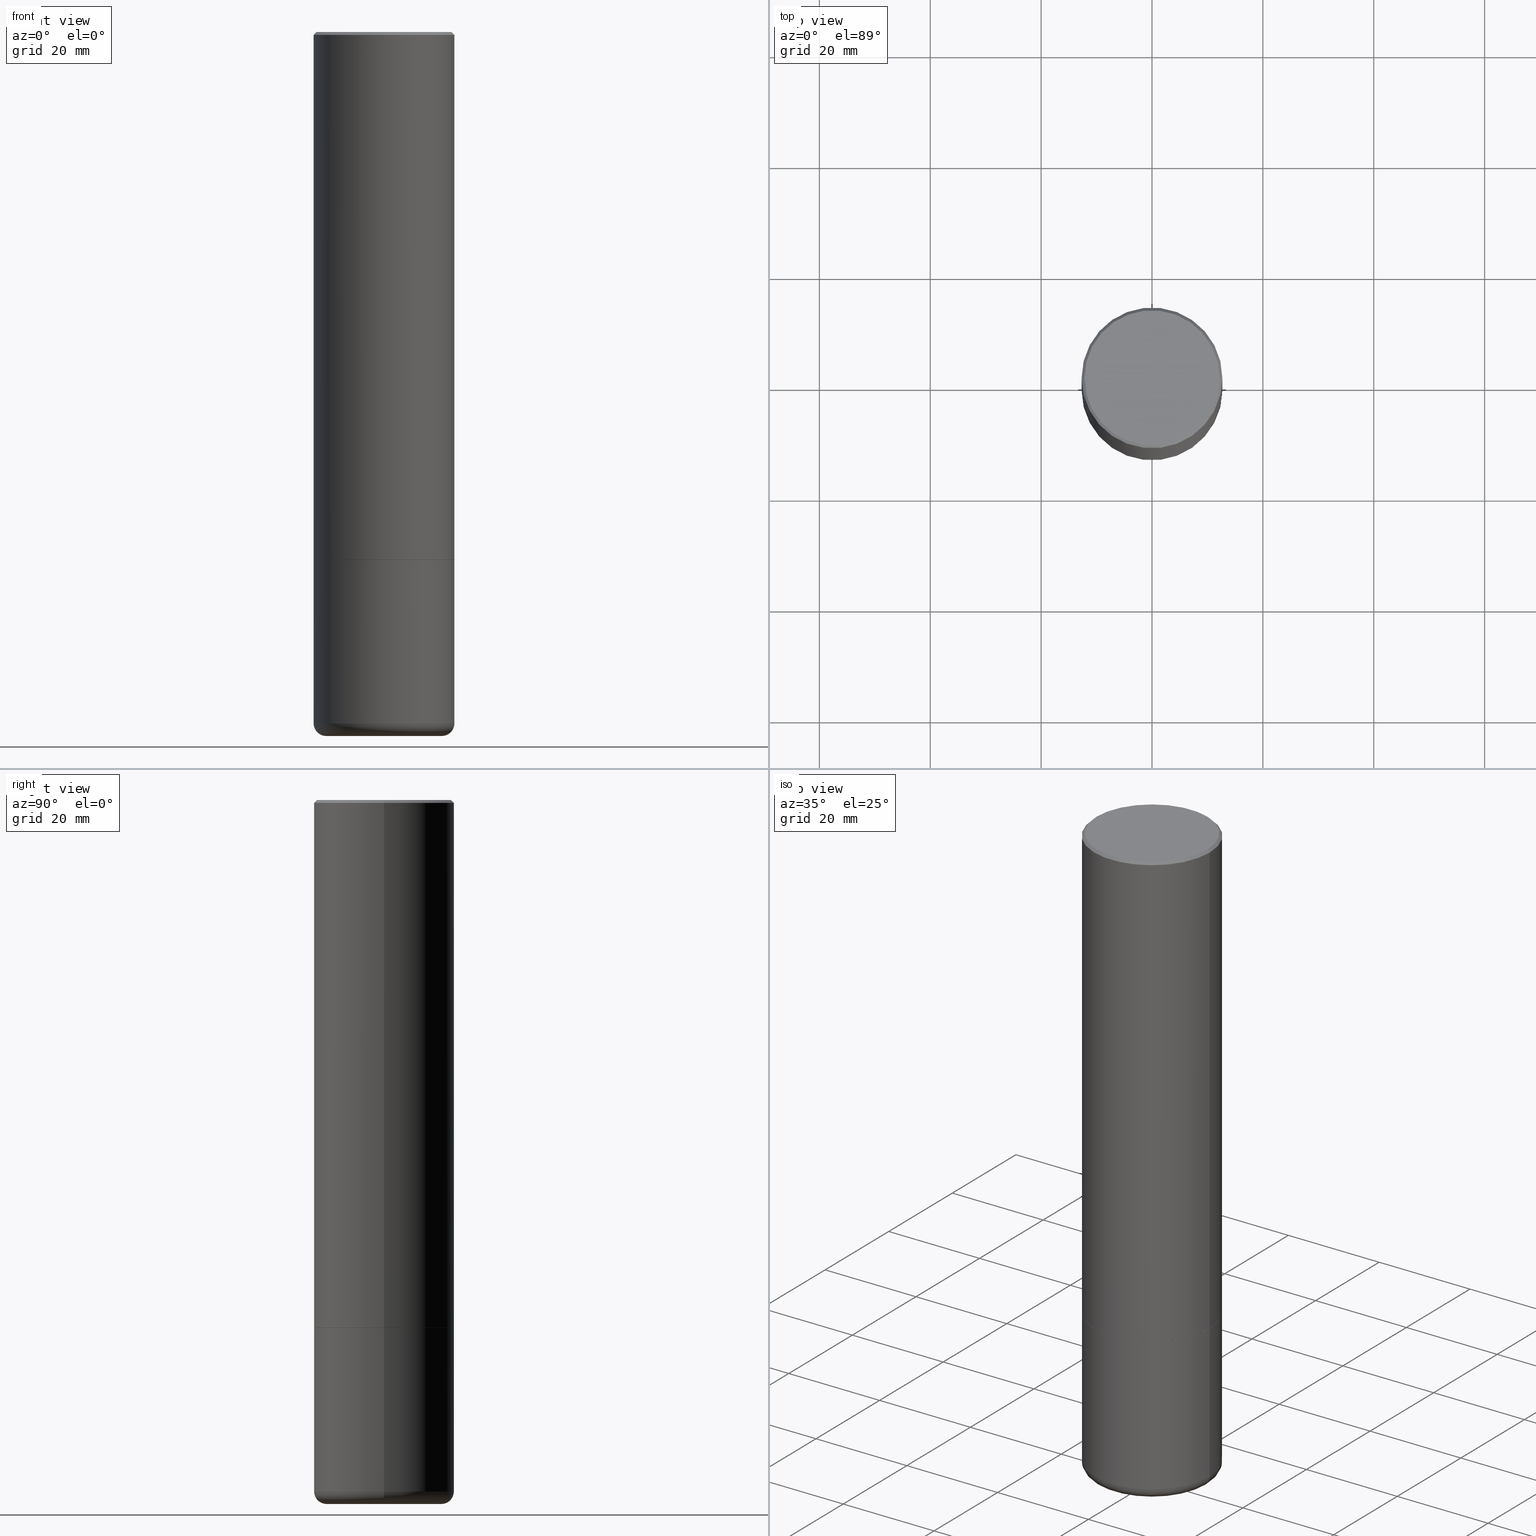
[diagram: canonical four-view strip — front | top / right | iso, engineering-drawing reading convention]
A machine part, canonical four-view strip (front | top / right | iso — engineering-drawing reading convention). The complete STEP part file that produces these views, byte-faithful:
ISO-10303-21;
HEADER;
FILE_DESCRIPTION (( 'STEP AP203' ),
    '1' );
FILE_NAME ('35733.STEP',
    '2022-11-02T20:55:50',
    ( '' ),
    ( '' ),
    'SwSTEP 2.0',
    'SolidWorks 2022',
    '' );
FILE_SCHEMA (( 'CONFIG_CONTROL_DESIGN' ));
ENDSEC;

DATA;
#1 = DIRECTION ( 'NONE',  ( 1.000000000000000000, -6.982962677686266711E-15, 0.000000000000000000 ) ) ;
#2 = FACE_OUTER_BOUND ( 'NONE', #224, .T. ) ;
#3 = EDGE_CURVE ( 'NONE', #290, #162, #248, .T. ) ;
#4 = CARTESIAN_POINT ( 'NONE',  ( 9.168062554388078877E-29, -1.308956353932295441E-14, -3.749000000000000554 ) ) ;
#5 = PERSON ( 'UNSPECIFIED', 'UNSPECIFIED', 'UNSPECIFIED', ('UNSPECIFIED'), ('UNSPECIFIED'), ('UNSPECIFIED') ) ;
#6 = CONICAL_SURFACE ( 'NONE', #122, 0.4092146118051470660, 1.562069680534929894 ) ;
#7 = DIRECTION ( 'NONE',  ( 7.105427357601001859E-15, 1.000000000000000000, -3.491481338843145583E-15 ) ) ;
#8 = ADVANCED_FACE ( 'NONE', ( #26 ), #299, .T. ) ;
#9 = ORIENTED_EDGE ( 'NONE', *, *, #135, .F. ) ;
#10 = DIRECTION ( 'NONE',  ( -1.000000000000000000, 6.982962677686266711E-15, 0.000000000000000000 ) ) ;
#11 = CARTESIAN_POINT ( 'NONE',  ( -0.4999999999999997224, 3.552713678800498957E-15, -2.459467545127451490E-29 ) ) ;
#12 = DIRECTION ( 'NONE',  ( 1.000000000000000000, -6.982962677686271444E-15, 0.000000000000000000 ) ) ;
#13 = ORIENTED_EDGE ( 'NONE', *, *, #114, .F. ) ;
#14 = CARTESIAN_POINT ( 'NONE',  ( -0.4999999999999994449, -3.026982904249409106E-15, -3.749000000000000554 ) ) ;
#15 = SHAPE_DEFINITION_REPRESENTATION ( #40, #405 ) ;
#16 = DIRECTION ( 'NONE',  ( -1.000000000000000000, 7.105427357601001859E-15, 0.000000000000000000 ) ) ;
#17 = DIRECTION ( 'NONE',  ( 0.7071067811864267805, -2.468850131080992517E-15, 0.7071067811866682540 ) ) ;
#18 = EDGE_CURVE ( 'NONE', #71, #199, #359, .T. ) ;
#19 = LINE ( 'NONE', #314, #403 ) ;
#20 = CARTESIAN_POINT ( 'NONE',  ( 9.170508023194263359E-29, -1.309305502066179899E-14, -3.750000000000000888 ) ) ;
#21 =( CONVERSION_BASED_UNIT ( 'INCH', #471 ) LENGTH_UNIT ( ) NAMED_UNIT ( #415 ) );
#22 = DIRECTION ( 'NONE',  ( -2.445468806185136597E-29, 3.491481338843145583E-15, 1.000000000000000000 ) ) ;
#23 = ORIENTED_EDGE ( 'NONE', *, *, #481, .F. ) ;
#24 = ORIENTED_EDGE ( 'NONE', *, *, #140, .T. ) ;
#25 = ADVANCED_FACE ( 'NONE', ( #215 ), #227, .T. ) ;
#26 = FACE_OUTER_BOUND ( 'NONE', #467, .T. ) ;
#27 = AXIS2_PLACEMENT_3D ( 'NONE', #322, #470, #136 ) ;
#28 = ADVANCED_FACE ( 'NONE', ( #319 ), #431, .T. ) ;
#29 = AXIS2_PLACEMENT_3D ( 'NONE', #429, #246, #393 ) ;
#30 = CARTESIAN_POINT ( 'NONE',  ( 0.4999999999999990563, -3.500078625662622769E-15, -0.02000000000000020164 ) ) ;
#31 = EDGE_CURVE ( 'NONE', #308, #450, #186, .T. ) ;
#32 = LOCAL_TIME ( 16, 55, 50.00000000000000000, #270 ) ;
#33 = COORDINATED_UNIVERSAL_TIME_OFFSET ( 5, 0, .BEHIND. ) ;
#34 = EDGE_CURVE ( 'NONE', #231, #353, #287, .T. ) ;
#35 = EDGE_LOOP ( 'NONE', ( #473, #38, #349 ) ) ;
#36 = VECTOR ( 'NONE', #171, 39.37007874015748143 ) ;
#37 = DIRECTION ( 'NONE',  ( -2.445468806185136597E-29, 3.491481338843145583E-15, 1.000000000000000000 ) ) ;
#38 = ORIENTED_EDGE ( 'NONE', *, *, #330, .T. ) ;
#39 = PERSON_AND_ORGANIZATION ( #5, #350 ) ;
#40 = PRODUCT_DEFINITION_SHAPE ( 'NONE', 'NONE',  #151 ) ;
#41 = EDGE_LOOP ( 'NONE', ( #384, #121, #345, #356 ) ) ;
#42 = EDGE_CURVE ( 'NONE', #218, #205, #146, .T. ) ;
#43 = EDGE_LOOP ( 'NONE', ( #341, #463, #210, #94 ) ) ;
#44 = DIRECTION ( 'NONE',  ( -0.9993908270190957621, 6.856857904024551737E-15, -0.03489949670250264147 ) ) ;
#45 = PRODUCT ( '35733', '35733', '', ( #361 ) ) ;
#46 = CC_DESIGN_PERSON_AND_ORGANIZATION_ASSIGNMENT ( #115, #137, ( #151 ) ) ;
#47 = PERSON_AND_ORGANIZATION_ROLE ( 'classification_officer' ) ;
#48 = DIRECTION ( 'NONE',  ( -1.000000000000000000, 6.982962677686265922E-15, -4.876176775795935793E-29 ) ) ;
#49 = DIRECTION ( 'NONE',  ( -2.445468806185136597E-29, 3.491481338843145583E-15, 1.000000000000000000 ) ) ;
#50 = CLOSED_SHELL ( 'NONE', ( #336, #266, #301, #425, #110, #274, #28, #479, #212 ) ) ;
#51 = CIRCLE ( 'NONE', #329, 0.08999999999999985789 ) ;
#52 = CARTESIAN_POINT ( 'NONE',  ( 9.170508023194262238E-29, -1.309305502066179741E-14, -3.750000000000000000 ) ) ;
#53 = VERTEX_POINT ( 'NONE', #178 ) ;
#54 = DIRECTION ( 'NONE',  ( -2.445468806185136597E-29, 3.491481338843145583E-15, 1.000000000000000000 ) ) ;
#55 = DIRECTION ( 'NONE',  ( 1.000000000000000000, -6.982962677686268288E-15, 0.000000000000000000 ) ) ;
#56 = ORIENTED_EDGE ( 'NONE', *, *, #78, .T. ) ;
#57 = DIRECTION ( 'NONE',  ( -2.445468806185136597E-29, 3.491481338843145583E-15, 1.000000000000000000 ) ) ;
#58 = CARTESIAN_POINT ( 'NONE',  ( -0.5000000000000001110, -1.156540650091130805E-14, -4.910003426924224534 ) ) ;
#59 = DIRECTION ( 'NONE',  ( -2.445468806185136597E-29, 3.491481338843145583E-15, 1.000000000000000000 ) ) ;
#60 = ORIENTED_EDGE ( 'NONE', *, *, #204, .T. ) ;
#61 = DIRECTION ( 'NONE',  ( 1.000000000000000000, -6.982962677686266711E-15, 4.876176775795935793E-29 ) ) ;
#62 = ADVANCED_FACE ( 'NONE', ( #404 ), #152, .T. ) ;
#63 = AXIS2_PLACEMENT_3D ( 'NONE', #157, #411, #382 ) ;
#64 = DIRECTION ( 'NONE',  ( 1.000000000000000000, -6.982962677686267499E-15, 4.876431871984425487E-29 ) ) ;
#65 = APPROVAL_PERSON_ORGANIZATION ( #100, #69, #67 ) ;
#66 = ORIENTED_EDGE ( 'NONE', *, *, #106, .T. ) ;
#67 = APPROVAL_ROLE ( '' ) ;
#68 = DIRECTION ( 'NONE',  ( 1.000000000000000000, -6.982962677686268288E-15, 0.000000000000000000 ) ) ;
#69 = APPROVAL ( #327, 'UNSPECIFIED' ) ;
#70 = ORIENTED_EDGE ( 'NONE', *, *, #34, .T. ) ;
#71 = VERTEX_POINT ( 'NONE', #124 ) ;
#72 = VECTOR ( 'NONE', #487, 39.37007874015747433 ) ;
#73 = CARTESIAN_POINT ( 'NONE',  ( 1.200726021880531330E-28, -1.714318533876182370E-14, -4.910003426924224534 ) ) ;
#74 = CC_DESIGN_PERSON_AND_ORGANIZATION_ASSIGNMENT ( #39, #47, ( #170 ) ) ;
#75 = DIRECTION ( 'NONE',  ( -2.445468806185136597E-29, 3.491481338843145583E-15, 1.000000000000000000 ) ) ;
#76 =( LENGTH_UNIT ( ) NAMED_UNIT ( * ) SI_UNIT ( $, .METRE. ) );
#77 = AXIS2_PLACEMENT_3D ( 'NONE', #73, #75, #225 ) ;
#78 = EDGE_CURVE ( 'NONE', #199, #450, #476, .T. ) ;
#79 = EDGE_CURVE ( 'NONE', #380, #199, #180, .T. ) ;
#80 = DIRECTION ( 'NONE',  ( -1.000000000000000000, 6.982962677686265922E-15, -4.876176775795935793E-29 ) ) ;
#81 = EDGE_LOOP ( 'NONE', ( #438, #56, #191, #272 ) ) ;
#82 = EDGE_CURVE ( 'NONE', #134, #218, #295, .T. ) ;
#83 = CIRCLE ( 'NONE', #360, 0.4999999999999990563 ) ;
#84 = DIRECTION ( 'NONE',  ( -1.000000000000000000, 6.982962677686266711E-15, 0.000000000000000000 ) ) ;
#85 = ORIENTED_EDGE ( 'NONE', *, *, #482, .F. ) ;
#86 = LINE ( 'NONE', #11, #413 ) ;
#87 = CARTESIAN_POINT ( 'NONE',  ( 1.222620590030553347E-28, -1.745578174532602389E-14, -4.999534596140719600 ) ) ;
#88 = ORIENTED_EDGE ( 'NONE', *, *, #42, .F. ) ;
#89 = DIRECTION ( 'NONE',  ( 1.000000000000000000, -6.982962677686266711E-15, 0.000000000000000000 ) ) ;
#90 = CARTESIAN_POINT ( 'NONE',  ( -0.4092146118051470660, -1.407011682816334222E-14, -5.000000000000000000 ) ) ;
#91 = ORIENTED_EDGE ( 'NONE', *, *, #481, .T. ) ;
#92 = DIRECTION ( 'NONE',  ( 1.000000000000000000, -6.982962677686268288E-15, 0.000000000000000000 ) ) ;
#93 = LINE ( 'NONE', #346, #271 ) ;
#94 = ORIENTED_EDGE ( 'NONE', *, *, #165, .F. ) ;
#95 = CARTESIAN_POINT ( 'NONE',  ( 1.222734403092568523E-28, -1.745740669421572989E-14, -5.000000000000000000 ) ) ;
#96 = ORIENTED_EDGE ( 'NONE', *, *, #114, .T. ) ;
#97 = DATE_AND_TIME ( #232, #32 ) ;
#98 = CYLINDRICAL_SURFACE ( 'NONE', #441, 0.4999999999999992228 ) ;
#99 = ORIENTED_EDGE ( 'NONE', *, *, #357, .T. ) ;
#100 = PERSON_AND_ORGANIZATION ( #5, #350 ) ;
#101 = DATE_TIME_ROLE ( 'classification_date' ) ;
#102 = LOCAL_TIME ( 16, 55, 50.00000000000000000, #142 ) ;
#103 = ORIENTED_EDGE ( 'NONE', *, *, #373, .T. ) ;
#104 = DIRECTION ( 'NONE',  ( 2.445468806185136597E-29, -3.491481338843145583E-15, -1.000000000000000000 ) ) ;
#105 = DATE_AND_TIME ( #325, #254 ) ;
#106 = EDGE_CURVE ( 'NONE', #71, #353, #378, .T. ) ;
#107 = EDGE_LOOP ( 'NONE', ( #24, #417 ) ) ;
#108 = DIRECTION ( 'NONE',  ( 1.000000000000000000, 0.000000000000000000, 0.000000000000000000 ) ) ;
#109 = VECTOR ( 'NONE', #203, 39.37007874015748143 ) ;
#110 = ADVANCED_FACE ( 'NONE', ( #198 ), #220, .F. ) ;
#111 = AXIS2_PLACEMENT_3D ( 'NONE', #324, #326, #398 ) ;
#112 = AXIS2_PLACEMENT_3D ( 'NONE', #141, #150, #108 ) ;
#113 =( NAMED_UNIT ( * ) PLANE_ANGLE_UNIT ( ) SI_UNIT ( $, .RADIAN. ) );
#114 = EDGE_CURVE ( 'NONE', #218, #134, #222, .T. ) ;
#115 = PERSON_AND_ORGANIZATION ( #5, #350 ) ;
#116 = AXIS2_PLACEMENT_3D ( 'NONE', #20, #167, #68 ) ;
#117 = EDGE_CURVE ( 'NONE', #153, #290, #132, .T. ) ;
#118 = ORIENTED_EDGE ( 'NONE', *, *, #117, .F. ) ;
#119 = FACE_OUTER_BOUND ( 'NONE', #439, .T. ) ;
#120 = MANIFOLD_SOLID_BREP ( 'Body-Move/Copy2[1]', #50 ) ;
#121 = ORIENTED_EDGE ( 'NONE', *, *, #169, .T. ) ;
#122 = AXIS2_PLACEMENT_3D ( 'NONE', #95, #104, #10 ) ;
#123 = CC_DESIGN_SECURITY_CLASSIFICATION ( #170, ( #320 ) ) ;
#124 = CARTESIAN_POINT ( 'NONE',  ( -0.3558846118051470220, -1.497065278352781821E-14, -4.999534596140719600 ) ) ;
#125 = ORIENTED_EDGE ( 'NONE', *, *, #135, .T. ) ;
#126 = CARTESIAN_POINT ( 'NONE',  ( 1.222734403092568523E-28, -1.745740669421572989E-14, -5.000000000000000000 ) ) ;
#127 = CARTESIAN_POINT ( 'NONE',  ( 9.170508023194262238E-29, -1.309305502066179741E-14, -3.750000000000000000 ) ) ;
#128 = CARTESIAN_POINT ( 'NONE',  ( 9.170508023194263359E-29, -1.309305502066179899E-14, -3.750000000000000888 ) ) ;
#129 = DIRECTION ( 'NONE',  ( -2.445468806185136877E-29, 3.491481338843145188E-15, 1.000000000000000000 ) ) ;
#130 = DIRECTION ( 'NONE',  ( 1.000000000000000000, -6.982962677686266711E-15, 0.000000000000000000 ) ) ;
#131 = CARTESIAN_POINT ( 'NONE',  ( 1.222734403092568523E-28, -1.745740669421572989E-14, -5.000000000000000000 ) ) ;
#132 = CIRCLE ( 'NONE', #211, 0.4989999999999994440 ) ;
#133 = DIRECTION ( 'NONE',  ( 1.000000000000000000, -6.982962677686265922E-15, 0.000000000000000000 ) ) ;
#134 = VERTEX_POINT ( 'NONE', #387 ) ;
#135 = EDGE_CURVE ( 'NONE', #162, #205, #166, .T. ) ;
#136 = DIRECTION ( 'NONE',  ( 1.000000000000000000, -6.982962677686265133E-15, 0.000000000000000000 ) ) ;
#137 = PERSON_AND_ORGANIZATION_ROLE ( 'creator' ) ;
#138 = DIRECTION ( 'NONE',  ( -2.445468806185136597E-29, 3.491481338843145583E-15, 1.000000000000000000 ) ) ;
#139 = CARTESIAN_POINT ( 'NONE',  ( -0.4092146118051470660, -1.459987633281651187E-14, -5.000000000000000000 ) ) ;
#140 = EDGE_CURVE ( 'NONE', #53, #475, #281, .T. ) ;
#141 = CARTESIAN_POINT ( 'NONE',  ( 0.000000000000000000, 0.000000000000000000, 0.000000000000000000 ) ) ;
#142 = COORDINATED_UNIVERSAL_TIME_OFFSET ( 5, 0, .BEHIND. ) ;
#143 = AXIS2_PLACEMENT_3D ( 'NONE', #214, #22, #133 ) ;
#144 = CONICAL_SURFACE ( 'NONE', #379, 0.4999999999999990563, 0.7853981633974477239 ) ;
#145 = COORDINATED_UNIVERSAL_TIME_OFFSET ( 5, 0, .BEHIND. ) ;
#146 = LINE ( 'NONE', #30, #260 ) ;
#147 = VECTOR ( 'NONE', #375, 39.37007874015748143 ) ;
#148 = ADVANCED_FACE ( 'NONE', ( #358 ), #250, .F. ) ;
#149 = ORIENTED_EDGE ( 'NONE', *, *, #3, .T. ) ;
#150 = DIRECTION ( 'NONE',  ( 0.000000000000000000, 0.000000000000000000, 1.000000000000000000 ) ) ;
#151 = PRODUCT_DEFINITION ( 'UNKNOWN', '', #320, #440 ) ;
#152 = CYLINDRICAL_SURFACE ( 'NONE', #388, 0.4999999999999992228 ) ;
#153 = VERTEX_POINT ( 'NONE', #390 ) ;
#154 = DIRECTION ( 'NONE',  ( 1.000000000000000000, -6.982962677686279332E-15, 0.000000000000000000 ) ) ;
#155 = APPROVAL ( #365, 'UNSPECIFIED' ) ;
#156 = PERSON_AND_ORGANIZATION_ROLE ( 'creator' ) ;
#157 = CARTESIAN_POINT ( 'NONE',  ( 1.200726021880531330E-28, -1.714318533876182370E-14, -4.910003426924224534 ) ) ;
#158 = ORIENTED_EDGE ( 'NONE', *, *, #78, .F. ) ;
#159 = CIRCLE ( 'NONE', #263, 0.4999999999999994449 ) ;
#160 = PLANE ( 'NONE',  #182 ) ;
#161 = DIRECTION ( 'NONE',  ( 1.000000000000000000, -6.982962677686267499E-15, 4.876176775795935793E-29 ) ) ;
#162 = VERTEX_POINT ( 'NONE', #355 ) ;
#163 = CARTESIAN_POINT ( 'NONE',  ( 0.4799999999999988165, -3.396558832296475394E-15, 1.707404996042524007E-17 ) ) ;
#164 = DIRECTION ( 'NONE',  ( -2.445468806185136597E-29, 3.491481338843145583E-15, 1.000000000000000000 ) ) ;
#165 = EDGE_CURVE ( 'NONE', #475, #53, #159, .T. ) ;
#166 = LINE ( 'NONE', #311, #36 ) ;
#167 = DIRECTION ( 'NONE',  ( -2.445468806185136597E-29, 3.491481338843145583E-15, 1.000000000000000000 ) ) ;
#168 = AXIS2_PLACEMENT_3D ( 'NONE', #175, #368, #181 ) ;
#169 = EDGE_CURVE ( 'NONE', #153, #374, #19, .T. ) ;
#170 = SECURITY_CLASSIFICATION ( '', '', #344 ) ;
#171 = DIRECTION ( 'NONE',  ( -2.445468806185136877E-29, 3.491481338843145188E-15, 1.000000000000000000 ) ) ;
#172 = DIRECTION ( 'NONE',  ( -2.445468806185136597E-29, 3.491481338843145583E-15, 1.000000000000000000 ) ) ;
#173 = CARTESIAN_POINT ( 'NONE',  ( 9.170508023194263359E-29, -1.309305502066179899E-14, -3.750000000000000888 ) ) ;
#174 = ORIENTED_EDGE ( 'NONE', *, *, #18, .T. ) ;
#175 = CARTESIAN_POINT ( 'NONE',  ( 1.200726021880531330E-28, -1.714318533876182370E-14, -4.910003426924224534 ) ) ;
#176 = APPROVAL_ROLE ( '' ) ;
#177 = ORIENTED_EDGE ( 'NONE', *, *, #117, .T. ) ;
#178 = CARTESIAN_POINT ( 'NONE',  ( 0.4999999999999994449, -1.658453635950492761E-14, -3.750000000000000000 ) ) ;
#179 = DATE_AND_TIME ( #334, #201 ) ;
#180 = CIRCLE ( 'NONE', #406, 0.4092146118051470660 ) ;
#181 = DIRECTION ( 'NONE',  ( 1.000000000000000000, -6.982962677686265133E-15, 0.000000000000000000 ) ) ;
#182 = AXIS2_PLACEMENT_3D ( 'NONE', #420, #354, #80 ) ;
#183 = CC_DESIGN_APPROVAL ( #69, ( #151 ) ) ;
#184 = ORIENTED_EDGE ( 'NONE', *, *, #259, .F. ) ;
#185 = PERSON_AND_ORGANIZATION ( #5, #350 ) ;
#186 = CIRCLE ( 'NONE', #27, 0.5000000000000001110 ) ;
#187 = CIRCLE ( 'NONE', #241, 0.4999999999999990563 ) ;
#188 = ADVANCED_FACE ( 'NONE', ( #247 ), #98, .T. ) ;
#189 = ADVANCED_FACE ( 'NONE', ( #321 ), #457, .F. ) ;
#190 = CARTESIAN_POINT ( 'NONE',  ( 0.4100000000000002531, -2.000620003661319368E-14, -4.910003426924224534 ) ) ;
#191 = ORIENTED_EDGE ( 'NONE', *, *, #31, .F. ) ;
#192 = EDGE_LOOP ( 'NONE', ( #315, #267, #125, #251 ) ) ;
#193 = CARTESIAN_POINT ( 'NONE',  ( -0.4999999999999990563, 3.421651712066262957E-15, -0.02000000000000020164 ) ) ;
#194 = DIRECTION ( 'NONE',  ( 1.000000000000000000, -6.982962677686266711E-15, 0.000000000000000000 ) ) ;
#195 = ORIENTED_EDGE ( 'NONE', *, *, #140, .F. ) ;
#196 = FACE_OUTER_BOUND ( 'NONE', #458, .T. ) ;
#197 = EDGE_CURVE ( 'NONE', #374, #304, #465, .T. ) ;
#198 = FACE_OUTER_BOUND ( 'NONE', #35, .T. ) ;
#199 = VERTEX_POINT ( 'NONE', #90 ) ;
#200 = AXIS2_PLACEMENT_3D ( 'NONE', #286, #207, #323 ) ;
#201 = LOCAL_TIME ( 16, 55, 50.00000000000000000, #33 ) ;
#202 = CARTESIAN_POINT ( 'NONE',  ( 0.4092146118051470660, -2.031493705561494790E-14, -5.000000000000000000 ) ) ;
#203 = DIRECTION ( 'NONE',  ( -2.445468806185136877E-29, 3.491481338843145188E-15, 1.000000000000000000 ) ) ;
#204 = EDGE_CURVE ( 'NONE', #304, #205, #83, .T. ) ;
#205 = VERTEX_POINT ( 'NONE', #280 ) ;
#206 = DIRECTION ( 'NONE',  ( 0.9999619230641714207, -6.890705306874825328E-15, -0.008726535498369011531 ) ) ;
#207 = DIRECTION ( 'NONE',  ( -2.445468806185136597E-29, 3.491481338843145583E-15, 1.000000000000000000 ) ) ;
#208 = ORIENTED_EDGE ( 'NONE', *, *, #18, .F. ) ;
#209 = DIRECTION ( 'NONE',  ( -1.000000000000000000, 6.982962677686265922E-15, 0.000000000000000000 ) ) ;
#210 = ORIENTED_EDGE ( 'NONE', *, *, #407, .T. ) ;
#211 = AXIS2_PLACEMENT_3D ( 'NONE', #173, #138, #55 ) ;
#212 = ADVANCED_FACE ( 'NONE', ( #426 ), #6, .F. ) ;
#213 = CONICAL_SURFACE ( 'NONE', #29, 0.3558846118051470220, 1.535889741755008364 ) ;
#214 = CARTESIAN_POINT ( 'NONE',  ( 1.222620590030553347E-28, -1.745578174532602389E-14, -4.999534596140719600 ) ) ;
#215 = FACE_OUTER_BOUND ( 'NONE', #41, .T. ) ;
#216 = CALENDAR_DATE ( 2022, 2, 11 ) ;
#217 = LINE ( 'NONE', #443, #147 ) ;
#218 = VERTEX_POINT ( 'NONE', #163 ) ;
#219 = APPLICATION_PROTOCOL_DEFINITION ( 'international standard', 'config_control_design', 1994, #338 ) ;
#220 = CONICAL_SURFACE ( 'NONE', #488, 0.3558846118051470220, 1.535889741755008364 ) ;
#221 = CC_DESIGN_PERSON_AND_ORGANIZATION_ASSIGNMENT ( #185, #340, ( #320 ) ) ;
#222 = CIRCLE ( 'NONE', #331, 0.4799999999999988165 ) ;
#223 = APPROVAL_PERSON_ORGANIZATION ( #293, #249, #252 ) ;
#224 = EDGE_LOOP ( 'NONE', ( #158, #233, #402, #85 ) ) ;
#225 = DIRECTION ( 'NONE',  ( 1.000000000000000000, -6.982962677686265133E-15, 4.883557194083112340E-29 ) ) ;
#226 = FACE_OUTER_BOUND ( 'NONE', #363, .T. ) ;
#227 = CONICAL_SURFACE ( 'NONE', #116, 0.4989999999999994440, 0.7853981633972775267 ) ;
#228 = ORIENTED_EDGE ( 'NONE', *, *, #238, .F. ) ;
#229 = DIRECTION ( 'NONE',  ( 1.000000000000000000, -6.982962677686266711E-15, 4.876176775795935793E-29 ) ) ;
#230 = DIRECTION ( 'NONE',  ( -2.445468806185136597E-29, 3.491481338843145583E-15, 1.000000000000000000 ) ) ;
#231 = VERTEX_POINT ( 'NONE', #459 ) ;
#232 = CALENDAR_DATE ( 2022, 2, 11 ) ;
#233 = ORIENTED_EDGE ( 'NONE', *, *, #297, .T. ) ;
#234 = DIRECTION ( 'NONE',  ( 1.000000000000000000, -6.982962677686268288E-15, 0.000000000000000000 ) ) ;
#235 = DIRECTION ( 'NONE',  ( 2.445468806185136597E-29, -3.491481338843145583E-15, -1.000000000000000000 ) ) ;
#236 = ORIENTED_EDGE ( 'NONE', *, *, #169, .F. ) ;
#237 = DIRECTION ( 'NONE',  ( -2.445468806185136877E-29, 3.491481338843145188E-15, 1.000000000000000000 ) ) ;
#238 = EDGE_CURVE ( 'NONE', #290, #153, #412, .T. ) ;
#239 = CARTESIAN_POINT ( 'NONE',  ( -4.175405657340879278E-46, 5.961372681521788801E-32, 1.707404996040164512E-17 ) ) ;
#240 = ORIENTED_EDGE ( 'NONE', *, *, #82, .T. ) ;
#241 = AXIS2_PLACEMENT_3D ( 'NONE', #276, #49, #89 ) ;
#242 = CARTESIAN_POINT ( 'NONE',  ( 0.5000000000000001110, -2.063466667760495706E-14, -4.910003426924224534 ) ) ;
#243 = APPROVAL_DATE_TIME ( #279, #155 ) ;
#244 = DIRECTION ( 'NONE',  ( 2.438088387897960049E-29, -3.491481338843145188E-15, -1.000000000000000000 ) ) ;
#245 = ORIENTED_EDGE ( 'NONE', *, *, #79, .F. ) ;
#246 = DIRECTION ( 'NONE',  ( 2.445468806185136597E-29, -3.491481338843145583E-15, -1.000000000000000000 ) ) ;
#247 = FACE_OUTER_BOUND ( 'NONE', #192, .T. ) ;
#248 = LINE ( 'NONE', #367, #348 ) ;
#249 = APPROVAL ( #434, 'UNSPECIFIED' ) ;
#250 = PLANE ( 'NONE',  #339 ) ;
#251 = ORIENTED_EDGE ( 'NONE', *, *, #204, .F. ) ;
#252 = APPROVAL_ROLE ( '' ) ;
#253 = AXIS2_PLACEMENT_3D ( 'NONE', #126, #449, #389 ) ;
#254 = LOCAL_TIME ( 16, 55, 50.00000000000000000, #145 ) ;
#255 = ORIENTED_EDGE ( 'NONE', *, *, #407, .F. ) ;
#256 = APPROVAL_DATE_TIME ( #364, #249 ) ;
#257 = EDGE_LOOP ( 'NONE', ( #184, #448, #174, #245 ) ) ;
#258 = PERSON_AND_ORGANIZATION ( #5, #350 ) ;
#259 = EDGE_CURVE ( 'NONE', #353, #380, #93, .T. ) ;
#260 = VECTOR ( 'NONE', #442, 39.37007874015748143 ) ;
#261 = CONICAL_SURFACE ( 'NONE', #428, 0.4989999999999994440, 0.7853981633972775267 ) ;
#262 =( NAMED_UNIT ( * ) SI_UNIT ( $, .STERADIAN. ) SOLID_ANGLE_UNIT ( ) );
#263 = AXIS2_PLACEMENT_3D ( 'NONE', #52, #394, #284 ) ;
#264 = AXIS2_PLACEMENT_3D ( 'NONE', #381, #164, #313 ) ;
#265 = UNCERTAINTY_MEASURE_WITH_UNIT (LENGTH_MEASURE( 1.000000000000000082E-05 ), #21, 'distance_accuracy_value', 'NONE');
#266 = ADVANCED_FACE ( 'NONE', ( #316 ), #484, .T. ) ;
#267 = ORIENTED_EDGE ( 'NONE', *, *, #455, .T. ) ;
#268 = DIRECTION ( 'NONE',  ( -2.445468806185136597E-29, 3.491481338843145583E-15, 1.000000000000000000 ) ) ;
#269 = EDGE_LOOP ( 'NONE', ( #88, #392, #91, #60 ) ) ;
#270 = COORDINATED_UNIVERSAL_TIME_OFFSET ( 5, 0, .BEHIND. ) ;
#271 = VECTOR ( 'NONE', #206, 39.37007874015748854 ) ;
#272 = ORIENTED_EDGE ( 'NONE', *, *, #421, .F. ) ;
#273 = CIRCLE ( 'NONE', #168, 0.5000000000000001110 ) ;
#274 = ADVANCED_FACE ( 'NONE', ( #464 ), #160, .F. ) ;
#275 = FACE_OUTER_BOUND ( 'NONE', #269, .T. ) ;
#276 = CARTESIAN_POINT ( 'NONE',  ( 4.890937612370322204E-31, -6.982962677686361867E-17, -0.02000000000000020164 ) ) ;
#277 = DIRECTION ( 'NONE',  ( -2.438088387897960049E-29, 3.491481338843145188E-15, 1.000000000000000000 ) ) ;
#278 = CARTESIAN_POINT ( 'NONE',  ( 0.000000000000000000, 0.000000000000000000, 0.000000000000000000 ) ) ;
#279 = DATE_AND_TIME ( #386, #102 ) ;
#280 = CARTESIAN_POINT ( 'NONE',  ( 0.4999999999999990563, -3.500078625662622769E-15, -0.02000000000000020164 ) ) ;
#281 = CIRCLE ( 'NONE', #200, 0.4999999999999994449 ) ;
#282 = CC_DESIGN_APPROVAL ( #155, ( #170 ) ) ;
#283 = CARTESIAN_POINT ( 'NONE',  ( 9.168062554388078877E-29, -1.308956353932295441E-14, -3.749000000000000554 ) ) ;
#284 = DIRECTION ( 'NONE',  ( 1.000000000000000000, -6.982962677686266711E-15, 0.000000000000000000 ) ) ;
#285 = DIRECTION ( 'NONE',  ( -0.9999619230641714207, 6.952228252019186602E-15, -0.008726535498369011531 ) ) ;
#286 = CARTESIAN_POINT ( 'NONE',  ( 9.170508023194262238E-29, -1.309305502066179741E-14, -3.750000000000000000 ) ) ;
#287 = LINE ( 'NONE', #433, #72 ) ;
#288 = DATE_TIME_ROLE ( 'creation_date' ) ;
#289 = CARTESIAN_POINT ( 'NONE',  ( 3.351822085289399659E-15, 0.4799999999999988165, -1.667374017664504893E-15 ) ) ;
#290 = VERTEX_POINT ( 'NONE', #310 ) ;
#291 = VECTOR ( 'NONE', #44, 39.37007874015747433 ) ;
#292 = CIRCLE ( 'NONE', #264, 0.3558846118051470220 ) ;
#293 = PERSON_AND_ORGANIZATION ( #5, #350 ) ;
#294 = MANIFOLD_SOLID_BREP ( 'Body-Move/Copy2[2]', #328 ) ;
#295 = CIRCLE ( 'NONE', #427, 0.4799999999999988165 ) ;
#296 = LOCAL_TIME ( 16, 55, 50.00000000000000000, #400 ) ;
#297 = EDGE_CURVE ( 'NONE', #199, #380, #453, .T. ) ;
#298 = PERSON_AND_ORGANIZATION_ROLE ( 'design_owner' ) ;
#299 = CONICAL_SURFACE ( 'NONE', #111, 0.4999999999999990563, 0.7853981633974477239 ) ;
#300 = TOROIDAL_SURFACE ( 'NONE', #77, 0.4100000000000002531, 0.08999999999999987177 ) ;
#301 = ADVANCED_FACE ( 'NONE', ( #119 ), #418, .T. ) ;
#302 = FACE_OUTER_BOUND ( 'NONE', #483, .T. ) ;
#303 = ORIENTED_EDGE ( 'NONE', *, *, #42, .T. ) ;
#304 = VERTEX_POINT ( 'NONE', #193 ) ;
#305 = LINE ( 'NONE', #456, #291 ) ;
#306 = DIRECTION ( 'NONE',  ( -2.445468806185136597E-29, 3.491481338843145583E-15, 1.000000000000000000 ) ) ;
#307 = AXIS2_PLACEMENT_3D ( 'NONE', #127, #277, #469 ) ;
#308 = VERTEX_POINT ( 'NONE', #242 ) ;
#309 = APPROVAL_PERSON_ORGANIZATION ( #474, #155, #176 ) ;
#310 = CARTESIAN_POINT ( 'NONE',  ( 0.4989999999999994440, -1.657755339682724475E-14, -3.750000000000000888 ) ) ;
#311 = CARTESIAN_POINT ( 'NONE',  ( 0.4999999999999992228, -3.491481338843128228E-15, 2.438088387897963973E-29 ) ) ;
#312 = EDGE_LOOP ( 'NONE', ( #228, #118 ) ) ;
#313 = DIRECTION ( 'NONE',  ( 1.000000000000000000, -6.982962677686265922E-15, 0.000000000000000000 ) ) ;
#314 = CARTESIAN_POINT ( 'NONE',  ( -0.4989999999999994440, -9.547446769218903015E-15, -3.750000000000000888 ) ) ;
#315 = ORIENTED_EDGE ( 'NONE', *, *, #197, .F. ) ;
#316 = FACE_OUTER_BOUND ( 'NONE', #81, .T. ) ;
#317 = CC_DESIGN_DATE_AND_TIME_ASSIGNMENT ( #105, #288, ( #151 ) ) ;
#318 = DIRECTION ( 'NONE',  ( 1.000000000000000000, -6.982962677686267499E-15, 4.876431871984425487E-29 ) ) ;
#319 = FACE_OUTER_BOUND ( 'NONE', #43, .T. ) ;
#320 = PRODUCT_DEFINITION_FORMATION_WITH_SPECIFIED_SOURCE ( 'ANY', '', #45, .NOT_KNOWN. ) ;
#321 = FACE_OUTER_BOUND ( 'NONE', #312, .T. ) ;
#322 = CARTESIAN_POINT ( 'NONE',  ( 1.200726021880531330E-28, -1.714318533876182370E-14, -4.910003426924224534 ) ) ;
#323 = DIRECTION ( 'NONE',  ( 1.000000000000000000, -6.982962677686266711E-15, 0.000000000000000000 ) ) ;
#324 = CARTESIAN_POINT ( 'NONE',  ( 4.890937612370322204E-31, -6.982962677686361867E-17, -0.02000000000000020164 ) ) ;
#325 = CALENDAR_DATE ( 2022, 2, 11 ) ;
#326 = DIRECTION ( 'NONE',  ( 2.445468806185136597E-29, -3.491481338843145583E-15, -1.000000000000000000 ) ) ;
#327 = APPROVAL_STATUS ( 'not_yet_approved' ) ;
#328 = CLOSED_SHELL ( 'NONE', ( #25, #62, #8, #391, #188, #409, #189, #148 ) ) ;
#329 = AXIS2_PLACEMENT_3D ( 'NONE', #190, #490, #154 ) ;
#330 = EDGE_CURVE ( 'NONE', #231, #71, #305, .T. ) ;
#331 = AXIS2_PLACEMENT_3D ( 'NONE', #239, #430, #318 ) ;
#332 = AXIS2_PLACEMENT_3D ( 'NONE', #283, #230, #194 ) ;
#333 = ORIENTED_EDGE ( 'NONE', *, *, #455, .F. ) ;
#334 = CALENDAR_DATE ( 2022, 2, 11 ) ;
#335 = CARTESIAN_POINT ( 'NONE',  ( -0.4100000000000002531, -1.422996012214541193E-14, -4.910003426924224534 ) ) ;
#336 = ADVANCED_FACE ( 'NONE', ( #196 ), #445, .F. ) ;
#337 = EDGE_CURVE ( 'NONE', #205, #304, #187, .T. ) ;
#338 = APPLICATION_CONTEXT ( 'configuration controlled 3d designs of mechanical parts and assemblies' ) ;
#339 = AXIS2_PLACEMENT_3D ( 'NONE', #289, #244, #48 ) ;
#340 = PERSON_AND_ORGANIZATION_ROLE ( 'design_supplier' ) ;
#341 = ORIENTED_EDGE ( 'NONE', *, *, #357, .F. ) ;
#342 = DIRECTION ( 'NONE',  ( -1.000000000000000000, 6.982962677686266711E-15, 0.000000000000000000 ) ) ;
#343 = CARTESIAN_POINT ( 'NONE',  ( -0.4999999999999994449, -1.156540650091131278E-14, -3.750000000000000000 ) ) ;
#344 = SECURITY_CLASSIFICATION_LEVEL ( 'unclassified' ) ;
#345 = ORIENTED_EDGE ( 'NONE', *, *, #373, .F. ) ;
#346 = CARTESIAN_POINT ( 'NONE',  ( 0.4092146118051470660, -2.026482271916379453E-14, -5.000000000000000000 ) ) ;
#347 = DIRECTION ( 'NONE',  ( -2.445468806185136597E-29, 3.491481338843145583E-15, 1.000000000000000000 ) ) ;
#348 = VECTOR ( 'NONE', #17, 39.37007874015748143 ) ;
#349 = ORIENTED_EDGE ( 'NONE', *, *, #396, .F. ) ;
#350 = ORGANIZATION ( 'UNSPECIFIED', 'UNSPECIFIED', '' ) ;
#351 = CARTESIAN_POINT ( 'NONE',  ( 4.890937612370322204E-31, -6.982962677686361867E-17, -0.02000000000000020164 ) ) ;
#352 = CARTESIAN_POINT ( 'NONE',  ( 4.890937612370322204E-31, -6.982962677686361867E-17, -0.02000000000000020164 ) ) ;
#353 = VERTEX_POINT ( 'NONE', #424 ) ;
#354 = DIRECTION ( 'NONE',  ( 2.438088387897960049E-29, -3.491481338843145188E-15, -1.000000000000000000 ) ) ;
#355 = CARTESIAN_POINT ( 'NONE',  ( 0.4999999999999994449, -1.658104487816608303E-14, -3.749000000000000554 ) ) ;
#356 = ORIENTED_EDGE ( 'NONE', *, *, #3, .F. ) ;
#357 = EDGE_CURVE ( 'NONE', #450, #475, #86, .T. ) ;
#358 = FACE_OUTER_BOUND ( 'NONE', #492, .T. ) ;
#359 = LINE ( 'NONE', #139, #444 ) ;
#360 = AXIS2_PLACEMENT_3D ( 'NONE', #352, #462, #130 ) ;
#361 = MECHANICAL_CONTEXT ( 'NONE', #338, 'mechanical' ) ;
#362 = CARTESIAN_POINT ( 'NONE',  ( -4.175405657340879278E-46, 5.961372681521788801E-32, 1.707404996040164512E-17 ) ) ;
#363 = EDGE_LOOP ( 'NONE', ( #236, #177, #149, #333 ) ) ;
#364 = DATE_AND_TIME ( #216, #296 ) ;
#365 = APPROVAL_STATUS ( 'not_yet_approved' ) ;
#366 = PRODUCT_RELATED_PRODUCT_CATEGORY ( 'detail', '', ( #45 ) ) ;
#367 = CARTESIAN_POINT ( 'NONE',  ( 0.4989999999999994440, -1.657755339682724475E-14, -3.750000000000000888 ) ) ;
#368 = DIRECTION ( 'NONE',  ( -2.445468806185136597E-29, 3.491481338843145583E-15, 1.000000000000000000 ) ) ;
#369 = ORIENTED_EDGE ( 'NONE', *, *, #297, .F. ) ;
#370 = APPLICATION_PROTOCOL_DEFINITION ( 'international standard', 'config_control_design', 1994, #423 ) ;
#371 = AXIS2_PLACEMENT_3D ( 'NONE', #395, #172, #61 ) ;
#372 = CC_DESIGN_APPROVAL ( #249, ( #320 ) ) ;
#373 = EDGE_CURVE ( 'NONE', #162, #374, #437, .T. ) ;
#374 = VERTEX_POINT ( 'NONE', #14 ) ;
#375 = DIRECTION ( 'NONE',  ( -0.7071067811865471286, 2.468850131082252722E-15, -0.7071067811865479058 ) ) ;
#376 = CC_DESIGN_DATE_AND_TIME_ASSIGNMENT ( #97, #101, ( #170 ) ) ;
#377 = CARTESIAN_POINT ( 'NONE',  ( 9.170508023194263359E-29, -1.309305502066179899E-14, -3.750000000000000888 ) ) ;
#378 = CIRCLE ( 'NONE', #143, 0.3558846118051470220 ) ;
#379 = AXIS2_PLACEMENT_3D ( 'NONE', #351, #408, #84 ) ;
#380 = VERTEX_POINT ( 'NONE', #202 ) ;
#381 = CARTESIAN_POINT ( 'NONE',  ( 1.222620590030553347E-28, -1.745578174532602389E-14, -4.999534596140719600 ) ) ;
#382 = DIRECTION ( 'NONE',  ( 1.000000000000000000, -6.982962677686265133E-15, 4.883557194083112340E-29 ) ) ;
#383 = DIRECTION ( 'NONE',  ( -2.445468806185136597E-29, 3.491481338843145583E-15, 1.000000000000000000 ) ) ;
#384 = ORIENTED_EDGE ( 'NONE', *, *, #238, .T. ) ;
#385 = DIRECTION ( 'NONE',  ( 2.445468806185136597E-29, -3.491481338843145583E-15, -1.000000000000000000 ) ) ;
#386 = CALENDAR_DATE ( 2022, 2, 11 ) ;
#387 = CARTESIAN_POINT ( 'NONE',  ( -0.4799999999999988165, 3.386736898677831703E-15, 1.707404996037808406E-17 ) ) ;
#388 = AXIS2_PLACEMENT_3D ( 'NONE', #447, #306, #416 ) ;
#389 = DIRECTION ( 'NONE',  ( 1.000000000000000000, -6.982962677686271444E-15, 0.000000000000000000 ) ) ;
#390 = CARTESIAN_POINT ( 'NONE',  ( -0.4989999999999994440, -9.542148314870680613E-15, -3.750000000000000888 ) ) ;
#391 = ADVANCED_FACE ( 'NONE', ( #275 ), #144, .T. ) ;
#392 = ORIENTED_EDGE ( 'NONE', *, *, #82, .F. ) ;
#393 = DIRECTION ( 'NONE',  ( -1.000000000000000000, 6.982962677686265922E-15, 0.000000000000000000 ) ) ;
#394 = DIRECTION ( 'NONE',  ( -2.445468806185136597E-29, 3.491481338843145583E-15, 1.000000000000000000 ) ) ;
#395 = CARTESIAN_POINT ( 'NONE',  ( 0.000000000000000000, 0.000000000000000000, 0.000000000000000000 ) ) ;
#396 = EDGE_CURVE ( 'NONE', #353, #71, #292, .T. ) ;
#397 = CARTESIAN_POINT ( 'NONE',  ( 0.000000000000000000, 0.000000000000000000, 0.000000000000000000 ) ) ;
#398 = DIRECTION ( 'NONE',  ( -1.000000000000000000, 6.982962677686266711E-15, 0.000000000000000000 ) ) ;
#399 = AXIS2_PLACEMENT_3D ( 'NONE', #128, #57, #92 ) ;
#400 = COORDINATED_UNIVERSAL_TIME_OFFSET ( 5, 0, .BEHIND. ) ;
#401 = PERSON_AND_ORGANIZATION ( #5, #350 ) ;
#402 = ORIENTED_EDGE ( 'NONE', *, *, #421, .T. ) ;
#403 = VECTOR ( 'NONE', #432, 39.37007874015748143 ) ;
#404 = FACE_OUTER_BOUND ( 'NONE', #480, .T. ) ;
#405 = ADVANCED_BREP_SHAPE_REPRESENTATION ( '35733', ( #120, #294, #112 ), #489 ) ;
#406 = AXIS2_PLACEMENT_3D ( 'NONE', #472, #59, #12 ) ;
#407 = EDGE_CURVE ( 'NONE', #308, #53, #452, .T. ) ;
#408 = DIRECTION ( 'NONE',  ( 2.445468806185136597E-29, -3.491481338843145583E-15, -1.000000000000000000 ) ) ;
#409 = ADVANCED_FACE ( 'NONE', ( #226 ), #261, .T. ) ;
#410 = ORIENTED_EDGE ( 'NONE', *, *, #197, .T. ) ;
#411 = DIRECTION ( 'NONE',  ( -2.445468806185136597E-29, 3.491481338843145583E-15, 1.000000000000000000 ) ) ;
#412 = CIRCLE ( 'NONE', #399, 0.4989999999999994440 ) ;
#413 = VECTOR ( 'NONE', #237, 39.37007874015748143 ) ;
#414 = ORIENTED_EDGE ( 'NONE', *, *, #259, .T. ) ;
#415 = DIMENSIONAL_EXPONENTS ( 1.000000000000000000, 0.000000000000000000, 0.000000000000000000, 0.000000000000000000, 0.000000000000000000, 0.000000000000000000, 0.000000000000000000 ) ;
#416 = DIRECTION ( 'NONE',  ( 1.000000000000000000, -6.982962677686267499E-15, 4.876176775795935793E-29 ) ) ;
#417 = ORIENTED_EDGE ( 'NONE', *, *, #165, .T. ) ;
#418 = CYLINDRICAL_SURFACE ( 'NONE', #436, 0.4999999999999997224 ) ;
#419 = ORIENTED_EDGE ( 'NONE', *, *, #31, .T. ) ;
#420 = CARTESIAN_POINT ( 'NONE',  ( 3.491481338843220919E-15, 0.4999999999999863443, -3.750000000000001776 ) ) ;
#421 = EDGE_CURVE ( 'NONE', #380, #308, #51, .T. ) ;
#422 = CARTESIAN_POINT ( 'NONE',  ( -0.4999999999999992228, 3.552713678800495407E-15, -2.459467545127449248E-29 ) ) ;
#423 = APPLICATION_CONTEXT ( 'configuration controlled 3d designs of mechanical parts and assemblies' ) ;
#424 = CARTESIAN_POINT ( 'NONE',  ( 0.3558846118051470220, -1.989732741205293704E-14, -4.999534596140719600 ) ) ;
#425 = ADVANCED_FACE ( 'NONE', ( #302 ), #213, .F. ) ;
#426 = FACE_OUTER_BOUND ( 'NONE', #257, .T. ) ;
#427 = AXIS2_PLACEMENT_3D ( 'NONE', #362, #383, #64 ) ;
#428 = AXIS2_PLACEMENT_3D ( 'NONE', #377, #37, #234 ) ;
#429 = CARTESIAN_POINT ( 'NONE',  ( 1.222620590030553347E-28, -1.745578174532602389E-14, -4.999534596140719600 ) ) ;
#430 = DIRECTION ( 'NONE',  ( -2.445468806185136597E-29, 3.491481338843145583E-15, 1.000000000000000000 ) ) ;
#431 = CYLINDRICAL_SURFACE ( 'NONE', #371, 0.4999999999999997224 ) ;
#432 = DIRECTION ( 'NONE',  ( -0.7071067811864267805, 7.493145998869918709E-15, 0.7071067811866682540 ) ) ;
#433 = CARTESIAN_POINT ( 'NONE',  ( 0.3558846118051470220, -1.989732741205293704E-14, -4.999534596140719600 ) ) ;
#434 = APPROVAL_STATUS ( 'not_yet_approved' ) ;
#435 = ORIENTED_EDGE ( 'NONE', *, *, #337, .F. ) ;
#436 = AXIS2_PLACEMENT_3D ( 'NONE', #278, #268, #229 ) ;
#437 = CIRCLE ( 'NONE', #454, 0.4999999999999994449 ) ;
#438 = ORIENTED_EDGE ( 'NONE', *, *, #79, .T. ) ;
#439 = EDGE_LOOP ( 'NONE', ( #419, #99, #195, #255 ) ) ;
#440 = DESIGN_CONTEXT ( 'detailed design', #423, 'design' ) ;
#441 = AXIS2_PLACEMENT_3D ( 'NONE', #397, #347, #161 ) ;
#442 = DIRECTION ( 'NONE',  ( 0.7071067811865471286, -7.319954787623254468E-15, -0.7071067811865479058 ) ) ;
#443 = CARTESIAN_POINT ( 'NONE',  ( -0.4999999999999990563, 3.421651712066262957E-15, -0.02000000000000020164 ) ) ;
#444 = VECTOR ( 'NONE', #285, 39.37007874015748854 ) ;
#445 = CONICAL_SURFACE ( 'NONE', #478, 0.4092146118051470660, 1.562069680534929894 ) ;
#446 = ORIENTED_EDGE ( 'NONE', *, *, #330, .F. ) ;
#447 = CARTESIAN_POINT ( 'NONE',  ( 0.000000000000000000, 0.000000000000000000, 0.000000000000000000 ) ) ;
#448 = ORIENTED_EDGE ( 'NONE', *, *, #396, .T. ) ;
#449 = DIRECTION ( 'NONE',  ( -2.445468806185136597E-29, 3.491481338843145583E-15, 1.000000000000000000 ) ) ;
#450 = VERTEX_POINT ( 'NONE', #58 ) ;
#451 = ORIENTED_EDGE ( 'NONE', *, *, #337, .T. ) ;
#452 = LINE ( 'NONE', #461, #468 ) ;
#453 = CIRCLE ( 'NONE', #253, 0.4092146118051470660 ) ;
#454 = AXIS2_PLACEMENT_3D ( 'NONE', #4, #54, #1 ) ;
#455 = EDGE_CURVE ( 'NONE', #374, #162, #485, .T. ) ;
#456 = CARTESIAN_POINT ( 'NONE',  ( -0.3558846118051470220, -1.497065278352781821E-14, -4.999534596140719600 ) ) ;
#457 = PLANE ( 'NONE',  #307 ) ;
#458 = EDGE_LOOP ( 'NONE', ( #66, #414, #369, #208 ) ) ;
#459 = CARTESIAN_POINT ( 'NONE',  ( 1.219663119561153040E-28, -1.741122043883507299E-14, -4.987106831646211269 ) ) ;
#460 = CC_DESIGN_PERSON_AND_ORGANIZATION_ASSIGNMENT ( #401, #156, ( #320 ) ) ;
#461 = CARTESIAN_POINT ( 'NONE',  ( 0.4999999999999997224, -3.491481338843131383E-15, 2.438088387897966495E-29 ) ) ;
#462 = DIRECTION ( 'NONE',  ( -2.445468806185136597E-29, 3.491481338843145583E-15, 1.000000000000000000 ) ) ;
#463 = ORIENTED_EDGE ( 'NONE', *, *, #482, .T. ) ;
#464 = FACE_OUTER_BOUND ( 'NONE', #107, .T. ) ;
#465 = LINE ( 'NONE', #422, #109 ) ;
#466 = AXIS2_PLACEMENT_3D ( 'NONE', #335, #7, #16 ) ;
#467 = EDGE_LOOP ( 'NONE', ( #13, #303, #451, #23 ) ) ;
#468 = VECTOR ( 'NONE', #129, 39.37007874015748143 ) ;
#469 = DIRECTION ( 'NONE',  ( 1.000000000000000000, -6.982962677686265922E-15, 4.876176775795935793E-29 ) ) ;
#470 = DIRECTION ( 'NONE',  ( -2.445468806185136597E-29, 3.491481338843145583E-15, 1.000000000000000000 ) ) ;
#471 = LENGTH_MEASURE_WITH_UNIT ( LENGTH_MEASURE( 0.02539999999999999897 ), #76 );
#472 = CARTESIAN_POINT ( 'NONE',  ( 1.222734403092568523E-28, -1.745740669421572989E-14, -5.000000000000000000 ) ) ;
#473 = ORIENTED_EDGE ( 'NONE', *, *, #34, .F. ) ;
#474 = PERSON_AND_ORGANIZATION ( #5, #350 ) ;
#475 = VERTEX_POINT ( 'NONE', #343 ) ;
#476 = CIRCLE ( 'NONE', #466, 0.08999999999999985789 ) ;
#477 = APPROVAL_DATE_TIME ( #179, #69 ) ;
#478 = AXIS2_PLACEMENT_3D ( 'NONE', #131, #385, #342 ) ;
#479 = ADVANCED_FACE ( 'NONE', ( #2 ), #300, .T. ) ;
#480 = EDGE_LOOP ( 'NONE', ( #103, #410, #435, #9 ) ) ;
#481 = EDGE_CURVE ( 'NONE', #134, #304, #217, .T. ) ;
#482 = EDGE_CURVE ( 'NONE', #450, #308, #273, .T. ) ;
#483 = EDGE_LOOP ( 'NONE', ( #446, #70, #491 ) ) ;
#484 = TOROIDAL_SURFACE ( 'NONE', #63, 0.4100000000000002531, 0.08999999999999987177 ) ;
#485 = CIRCLE ( 'NONE', #332, 0.4999999999999994449 ) ;
#486 = CC_DESIGN_PERSON_AND_ORGANIZATION_ASSIGNMENT ( #258, #298, ( #45 ) ) ;
#487 = DIRECTION ( 'NONE',  ( 0.9993908270190957621, -6.978169709227547799E-15, -0.03489949670250264147 ) ) ;
#488 = AXIS2_PLACEMENT_3D ( 'NONE', #87, #235, #209 ) ;
#489 =( GEOMETRIC_REPRESENTATION_CONTEXT ( 3 ) GLOBAL_UNCERTAINTY_ASSIGNED_CONTEXT ( ( #265 ) ) GLOBAL_UNIT_ASSIGNED_CONTEXT ( ( #21, #113, #262 ) ) REPRESENTATION_CONTEXT ( 'NONE', 'WORKASPACE' ) );
#490 = DIRECTION ( 'NONE',  ( -6.982962677686266711E-15, -1.000000000000000000, 3.491481338843145583E-15 ) ) ;
#491 = ORIENTED_EDGE ( 'NONE', *, *, #106, .F. ) ;
#492 = EDGE_LOOP ( 'NONE', ( #240, #96 ) ) ;
ENDSEC;
END-ISO-10303-21;
